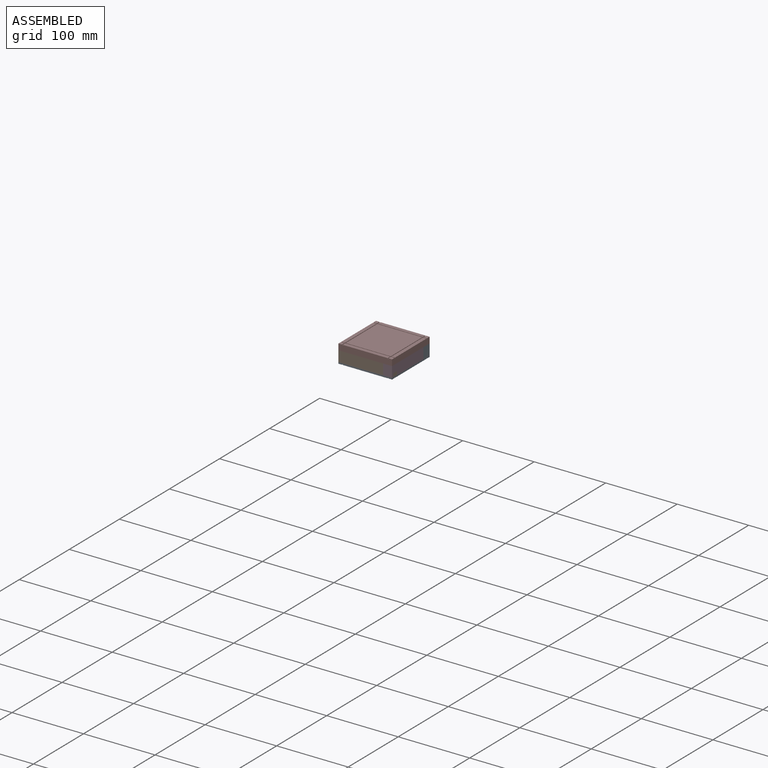
[diagram: assembled view]
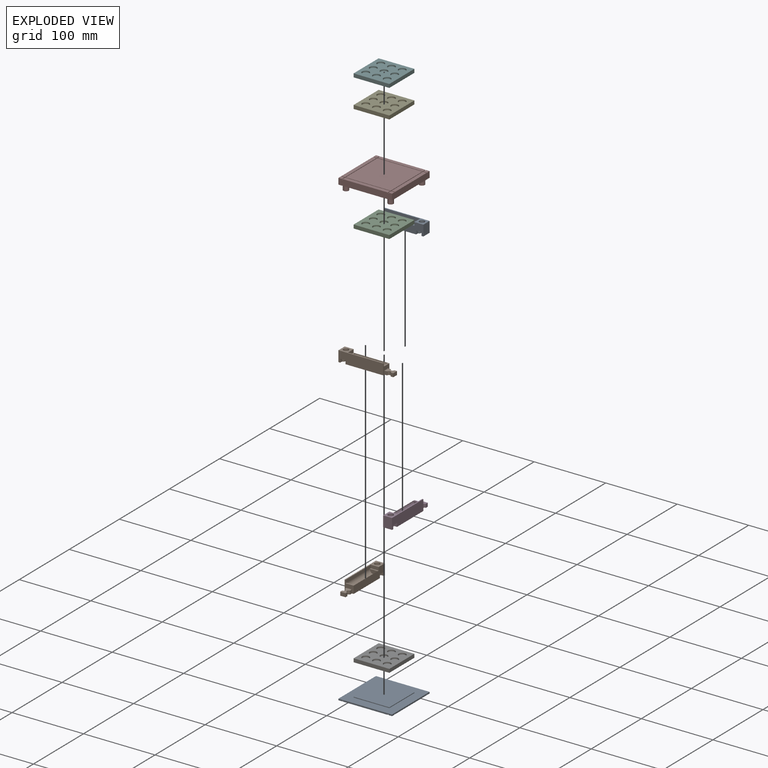
[diagram: exploded view]
GUIDED TOUR — MATED ASSEMBLY (Onshape document b35e29c99b966224db2e9e65, AutoMate assembly b35e29c99b966224db2e9e65_3995c550875dd4c600285eb4_8e761696dfd5afc8842ea449_default)

This assembly has 10 components, labeled P0..P9 below (a component is one placed occurrence of a part; the same part can appear more than once), held together by 9 mates. A mate is a constraint between two components; its type names the relative motion it leaves free:
  FASTENED — locks the two components together rigidly (no relative motion).
Axis/direction vectors are unit vectors and 'through' points are millimeter coordinates, both in the assembly's world frame.

MATES
  1. FASTENED "Fastened 2": P9 <-> P3, direction (0.000, 0.000, 1.000) through (57.94, -54.83, -3.53) mm
  2. FASTENED "Fastened 4": P0 <-> P3, direction (0.000, 0.000, 1.000) through (51.69, -48.58, -8.53) mm
  3. FASTENED "Fastened 9": P9 <-> P7, direction (0.000, 0.000, 1.000) through (-4.56, -54.83, -1.03) mm
  4. FASTENED "Fastened 5": P6 <-> P0, direction (0.000, 0.000, -1.000) through (26.69, -23.58, -7.53) mm
  5. FASTENED "Fastened 3": P9 <-> P1, direction (0.000, 0.000, -1.000) through (-4.56, -54.83, -3.53) mm
  6. FASTENED "Fastened 8": P2 <-> P6, direction (0.000, 0.000, -1.000) through (26.69, -23.58, -2.53) mm
  7. FASTENED "Fastened 7": P4 <-> P5, direction (0.000, 0.000, -1.000) through (26.69, -23.58, 7.47) mm
  8. FASTENED "Fastened 6": P4 <-> P2, direction (0.000, 0.000, -1.000) through (26.69, -23.58, 2.47) mm
  9. FASTENED "Fastened 1": P1 <-> P8, direction (0.000, 0.000, -1.000) through (-4.56, 7.67, -3.53) mm

ASSEMBLY ORDER
  1. P9 — the base component [order heuristic]
  2. P1 — core [order heuristic]
  3. P3 — core [order heuristic]
  4. P8 — core [order heuristic]
  5. P6 [order verified]
  6. P2 [order verified]
  7. P0 [order verified]
  8. P4 [order verified]
  9. P7 — core [order heuristic]
  10. P5 [order verified]
Order-tag legend:
  [order verified] — this step's position reverses a verified removal order: the component was checked to insert without passing through the ones already placed.
  [order heuristic] — the first 5 components form the assembly's core: parts whose collision-free extraction could not be verified, listed in mate-graph order.

Of the 10 components, 5 carry the full construction recipe — the FeatureScript program that regenerates the part's solid from scratch; the rest are supplied as boundary geometry only.
Each toured component is shown spotlighted twice — in the assembled view, then in the exploded view, where a leader line traces a displaced component back to its assembled socket (saturated green if recipe-attached, orange if geometry-only; every other component desaturated gray) — followed by its recipe or geometry summary and the mates that hold it.
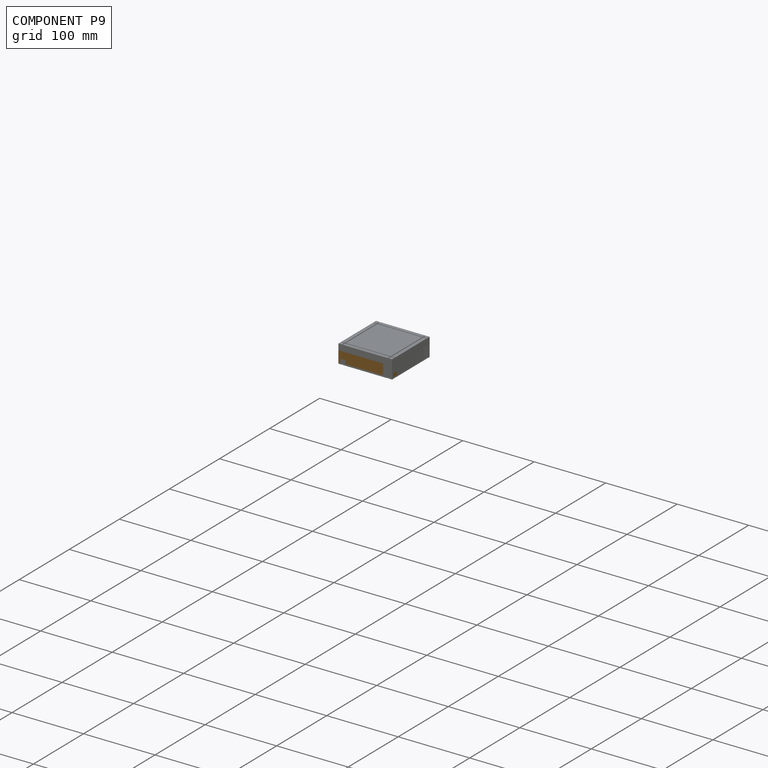
[diagram: component P9 — assembled]
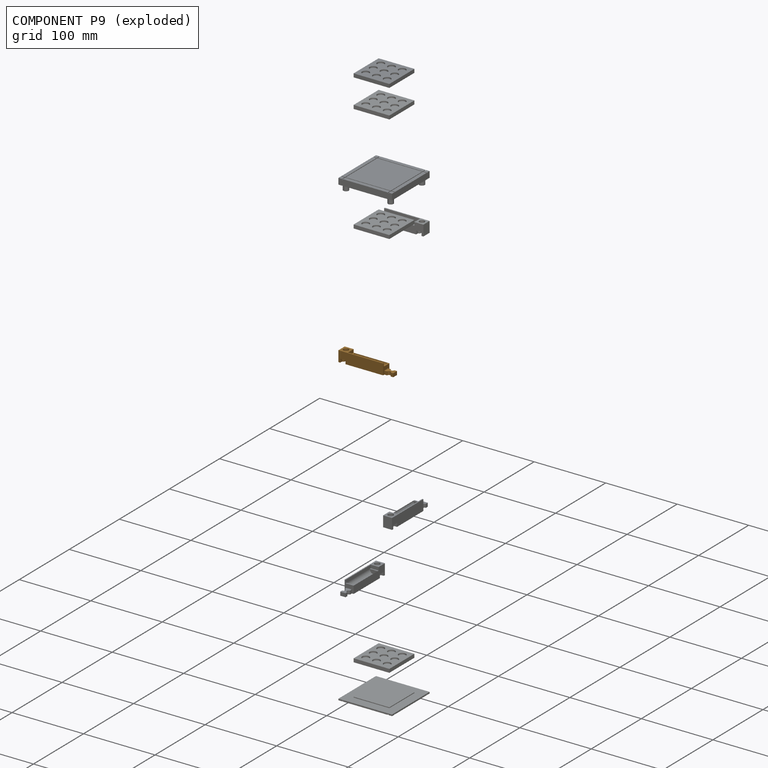
[diagram: component P9 — exploded]
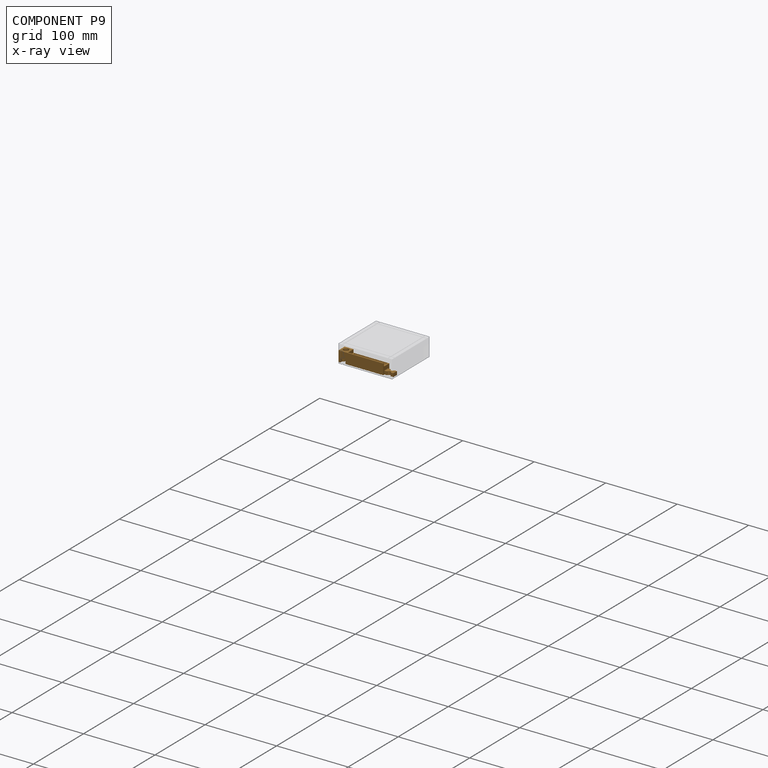
[diagram: component P9 — x-ray view]
COMPONENT P9 — geometry summary (no construction recipe available for this part):
  bounding box: 75.0 x 15.0 x 12.5 mm
  B-rep topology: 1 solid, 31 faces, 164 edges
  volume: 6727 mm^3 (48% of its bounding box)
Held by: FASTENED mate "Fastened 2" to P3; FASTENED mate "Fastened 9" to P7; FASTENED mate "Fastened 3" to P1.
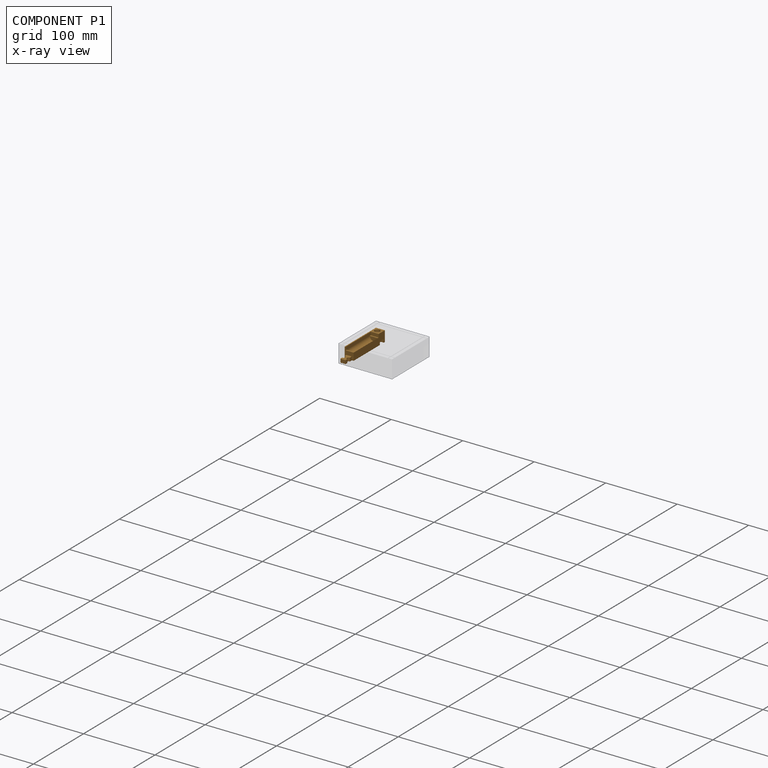
[diagram: component P1 — x-ray view]
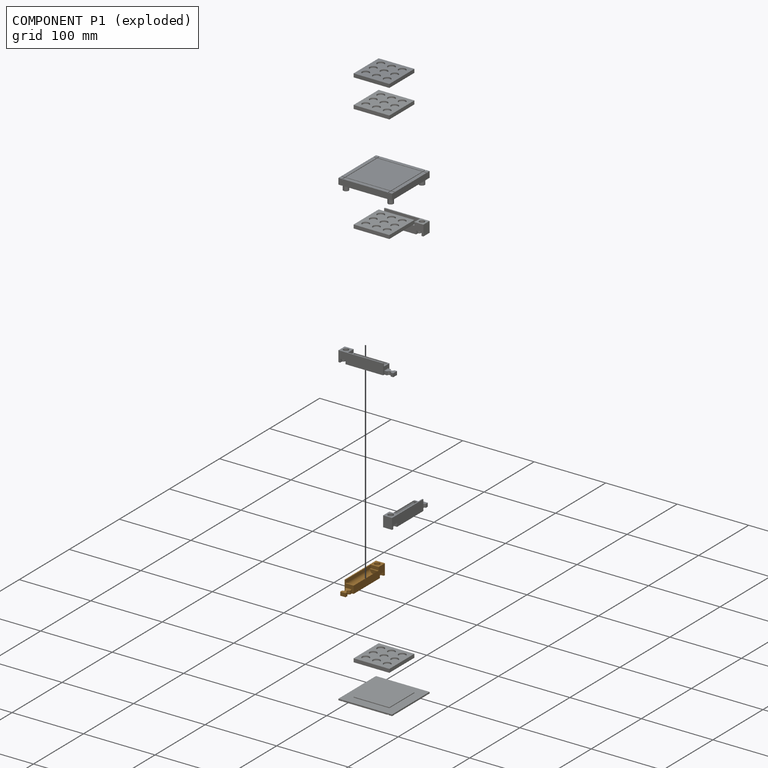
[diagram: component P1 — exploded]
COMPONENT P1 — geometry summary (no construction recipe available for this part):
  bounding box: 75.0 x 15.0 x 12.5 mm
  B-rep topology: 1 solid, 31 faces, 164 edges
  volume: 6727 mm^3 (48% of its bounding box)
Held by: FASTENED mate "Fastened 3" to P9; FASTENED mate "Fastened 1" to P8.
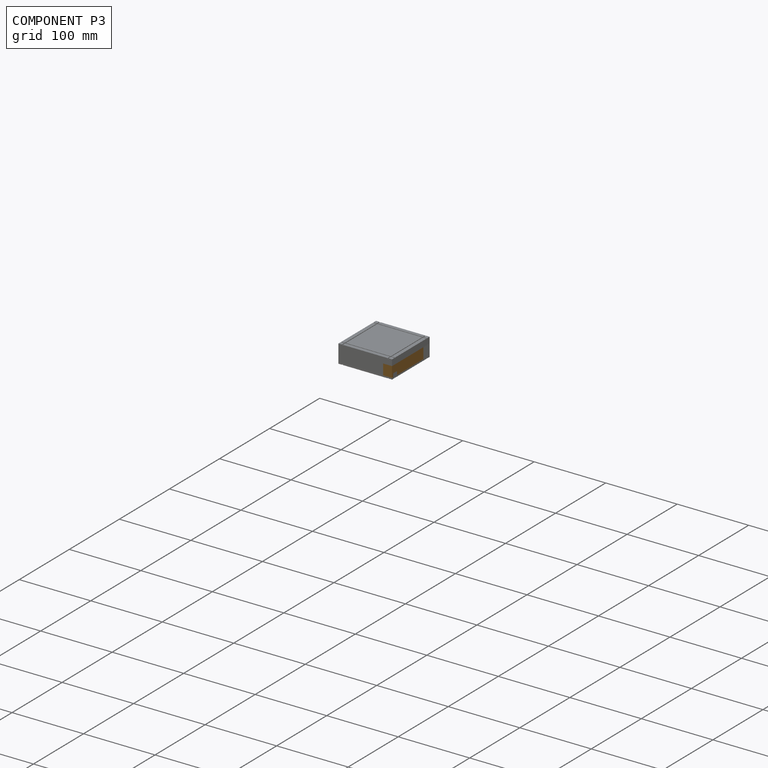
[diagram: component P3 — assembled]
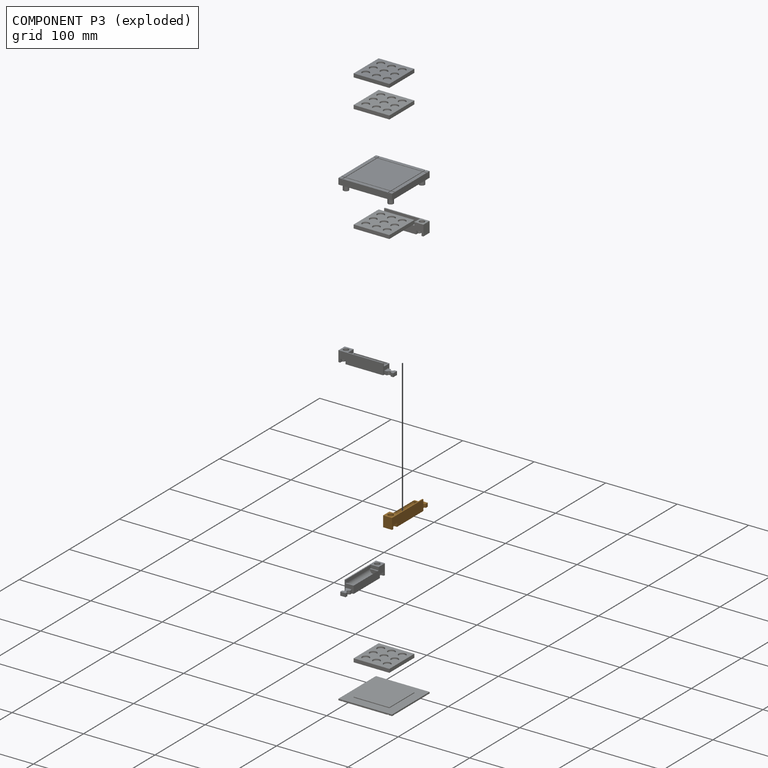
[diagram: component P3 — exploded]
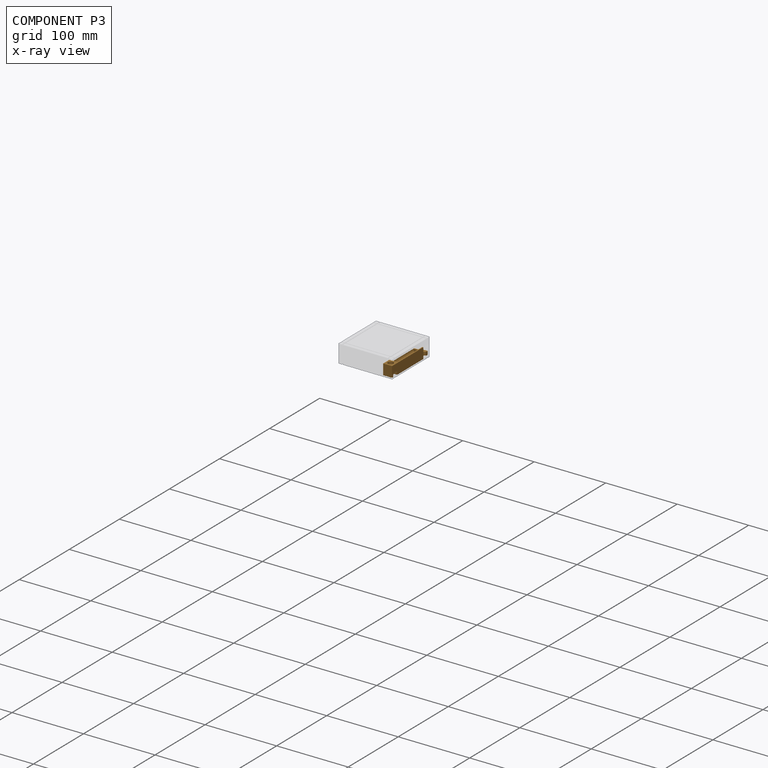
[diagram: component P3 — x-ray view]
COMPONENT P3 — geometry summary (no construction recipe available for this part):
  bounding box: 75.0 x 15.0 x 12.5 mm
  B-rep topology: 1 solid, 31 faces, 164 edges
  volume: 6727 mm^3 (48% of its bounding box)
Held by: FASTENED mate "Fastened 2" to P9; FASTENED mate "Fastened 4" to P0.
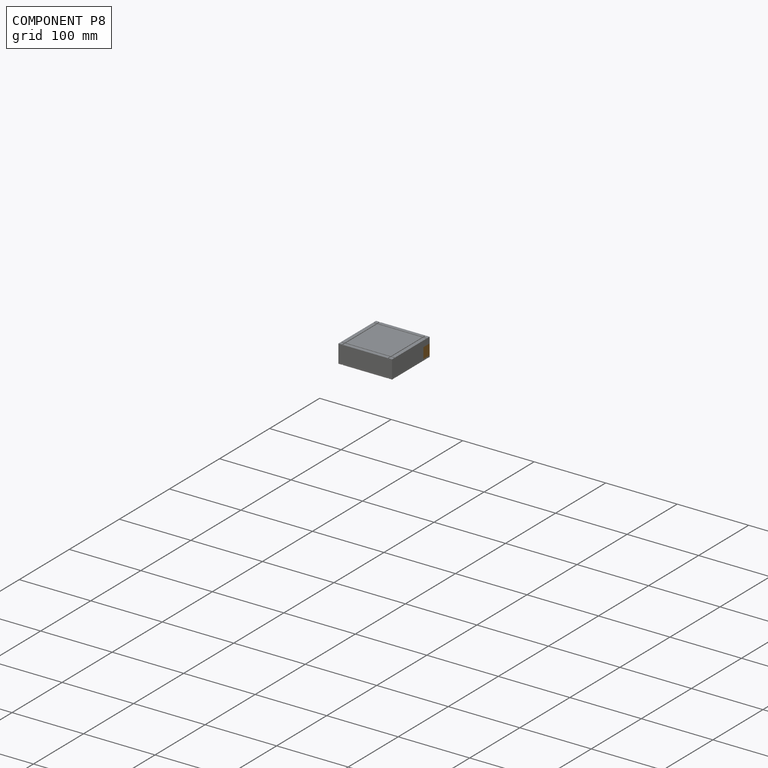
[diagram: component P8 — assembled]
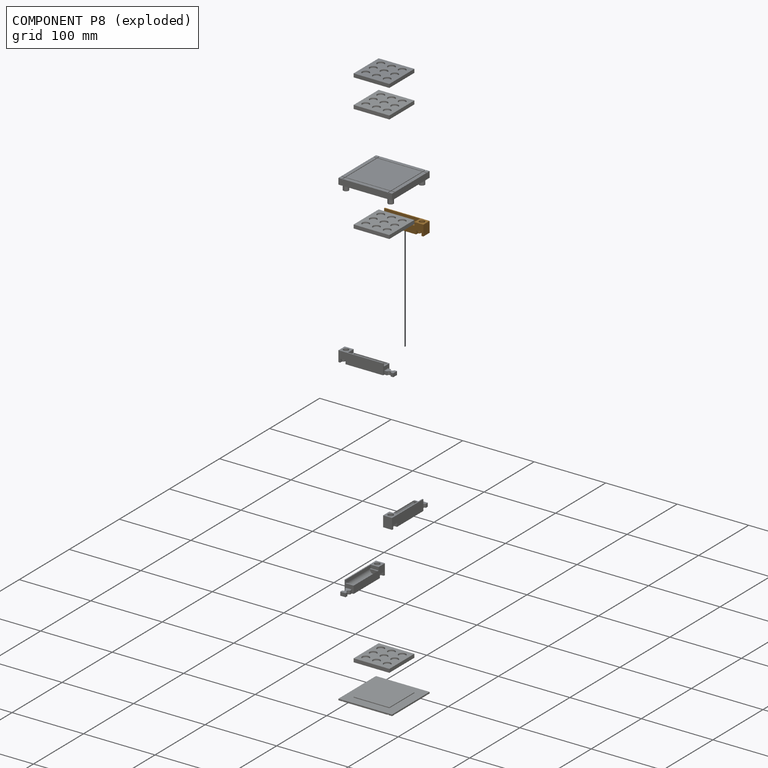
[diagram: component P8 — exploded]
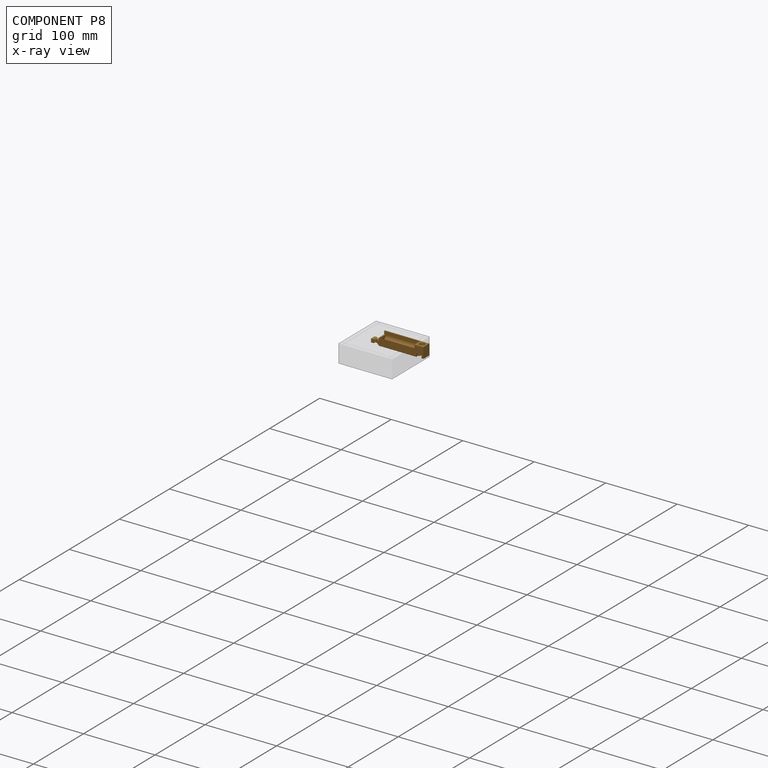
[diagram: component P8 — x-ray view]
COMPONENT P8 — geometry summary (no construction recipe available for this part):
  bounding box: 75.0 x 15.0 x 12.5 mm
  B-rep topology: 1 solid, 31 faces, 164 edges
  volume: 6727 mm^3 (48% of its bounding box)
Held by: FASTENED mate "Fastened 1" to P1.
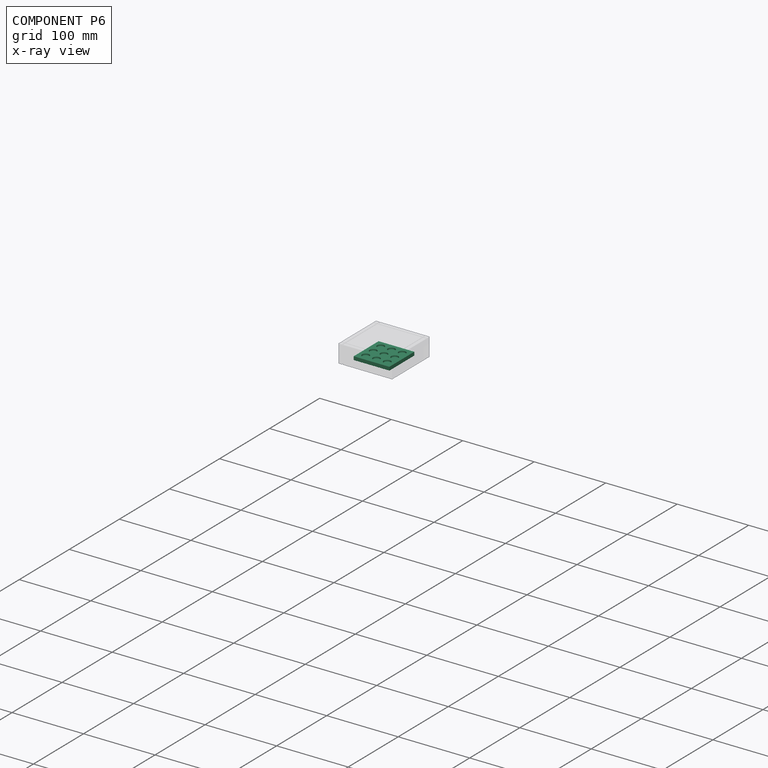
[diagram: component P6 — x-ray view]
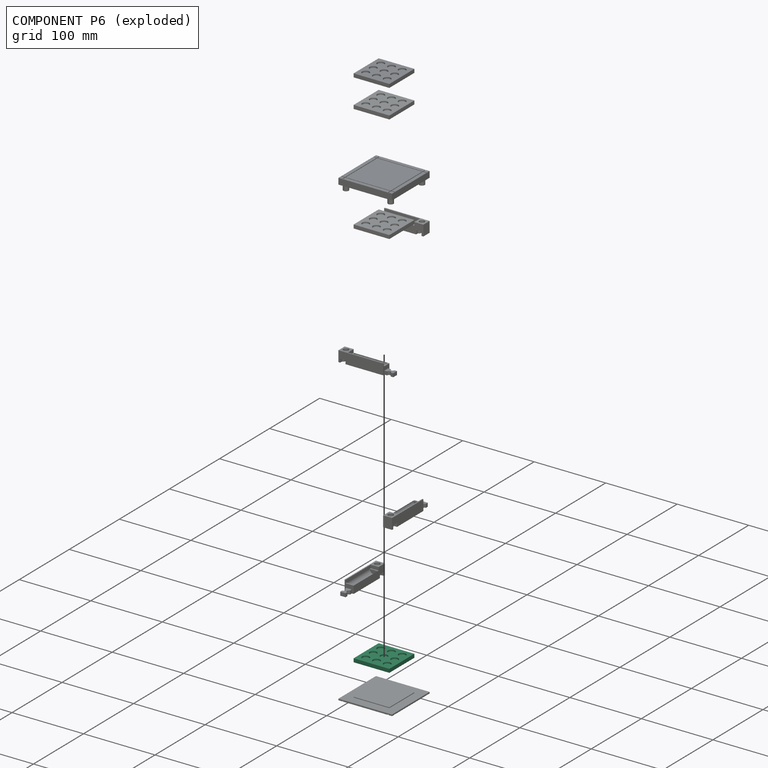
[diagram: component P6 — exploded]
COMPONENT P6 — same part as P2 (CADFS 00586416); its construction recipe is shown at P2.
Held by: FASTENED mate "Fastened 5" to P0; FASTENED mate "Fastened 8" to P2.
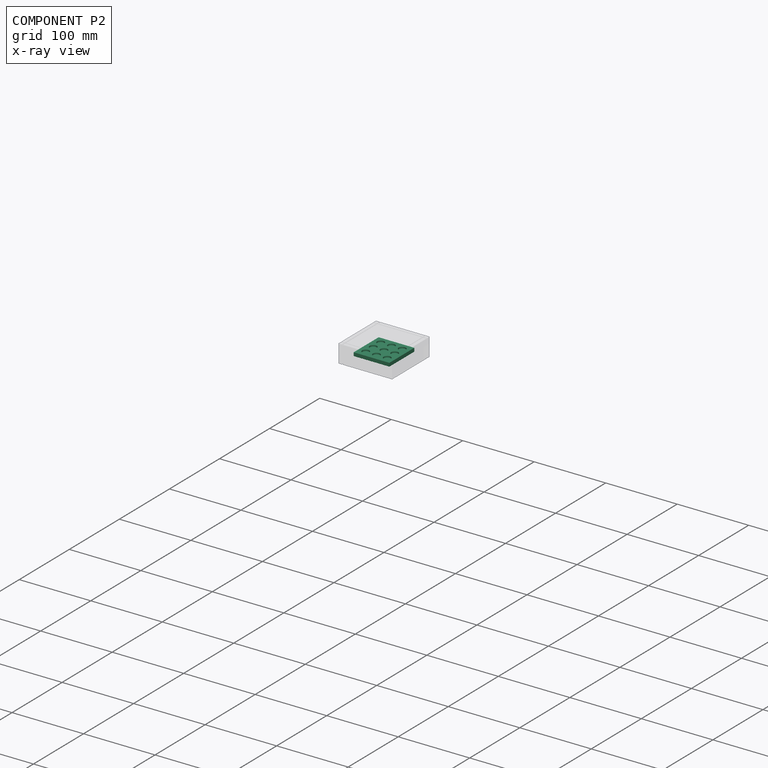
[diagram: component P2 — x-ray view]
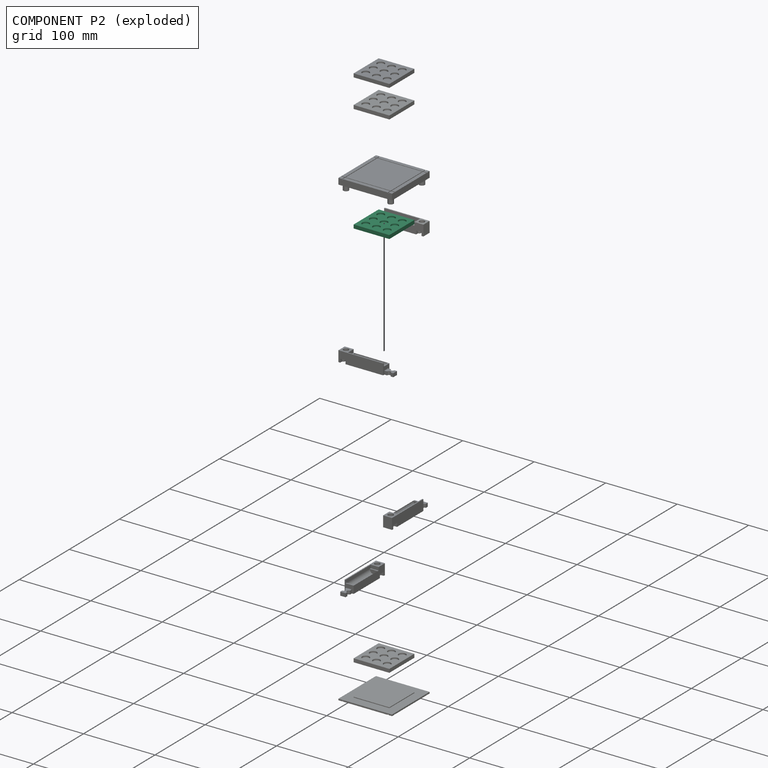
[diagram: component P2 — exploded]
COMPONENT P2 — recipe-attached (CADFS 00586416, mesh-verified: the recipe's output STEP matches this component's geometry to below the mesh-comparison resolution (tessellation chordal tolerance ~0.106 mm)).
Held by: FASTENED mate "Fastened 8" to P6; FASTENED mate "Fastened 6" to P4.
Construction recipe (FeatureScript — the CAD program that rebuilds this solid; sketch coordinates are in the units given by the * unit suffixes, e.g. mm):

FeatureScript 1511;
import(path : "onshape/std/geometry.fs", version : "1511.0");
import(path : "onshape/std/common.fs", version : "1511.0");
const mm = millimeter;
const VERTEX = EntityType.VERTEX;
const EDGE = EntityType.EDGE;
const FACE = EntityType.FACE;
const BODY = EntityType.BODY;
function v(x, y){return vector(x, y);}
function OD(order){return orderDisambiguation(order);}
function OSD(set){return originalSetDisambiguation(set);}
function TD(topology){return topologyDisambiguation(topology);}
function TDD(query){return trueDependencyDisambiguation(query);}
function sQuery(a, b, c) {return sketchEntityQuery(a, b, c);}

annotation { "Feature Type Name" : "Feature", "Feature Type Description" : "" }
export const myFeature = defineFeature(function(context is Context, id is Id, definition is map)
    precondition{}
    {
        {
            var Q0;
            Q0=qCreatedBy(makeId("Top.planeOp"),FACE);
            var sketch = newSketch(context, id + "F0", { "sketchPlane" : qUnion([Q0])});
            skLineSegment(sketch, "E0.bottom", {"start": v(25, -25) * mm, "end": v(-25, -25) * mm});
            skLineSegment(sketch, "E0.top", {"start": v(25, 25) * mm, "end": v(-25, 25) * mm});
            skLineSegment(sketch, "E0.left", {"start": v(25, -25) * mm, "end": v(25, 25) * mm});
            skLineSegment(sketch, "E0.right", {"start": v(-25, -25) * mm, "end": v(-25, 25) * mm});
            skPoint(sketch, "E0.middle", {"position": v(0, 0) * mm});
            skCircle(sketch, "E1", {"center": v(-15, 15) * mm, "radius": 5 * mm});
            skCircle(sketch, "E2", {"center": v(0, 15) * mm, "radius": 5 * mm});
            skCircle(sketch, "E3", {"center": v(15, 15) * mm, "radius": 5 * mm});
            skCircle(sketch, "E4", {"center": v(15, -15) * mm, "radius": 5 * mm});
            skCircle(sketch, "E5", {"center": v(0, -15) * mm, "radius": 5 * mm});
            skCircle(sketch, "E6", {"center": v(-15, -15) * mm, "radius": 5 * mm});
            skCircle(sketch, "E7", {"center": v(-15, 0) * mm, "radius": 5 * mm});
            skCircle(sketch, "E8", {"center": v(0, 0) * mm, "radius": 5 * mm});
            skCircle(sketch, "E9", {"center": v(15, 0) * mm, "radius": 5 * mm});
            skSolve(sketch);
        }
        {
            var Q0;
            Q0=makeQuery(id+"F0.imprint","IMPRINT",FACE,{"disambiguationData":[TD([[makeQuery(id+"F0.imprint","IMPRINT",EDGE,{"derivedFrom":sQuery(id+"F0.wireOp",EDGE,"E0.bottom")}),-1.0]])]});
            var Q1;
            Q1=makeQuery(id+"F0.imprint","IMPRINT",FACE,{"disambiguationData":[TD([[makeQuery(id+"F0.imprint","IMPRINT",EDGE,{"derivedFrom":sQuery(id+"F0.wireOp",EDGE,"E1")}),1.0]])]});
            var Q2;
            Q2=makeQuery(id+"F0.imprint","IMPRINT",FACE,{"disambiguationData":[TD([[makeQuery(id+"F0.imprint","IMPRINT",EDGE,{"derivedFrom":sQuery(id+"F0.wireOp",EDGE,"E2")}),1.0]])]});
            var Q3;
            Q3=makeQuery(id+"F0.imprint","IMPRINT",FACE,{"disambiguationData":[TD([[makeQuery(id+"F0.imprint","IMPRINT",EDGE,{"derivedFrom":sQuery(id+"F0.wireOp",EDGE,"E3")}),1.0]])]});
            var Q4;
            Q4=makeQuery(id+"F0.imprint","IMPRINT",FACE,{"disambiguationData":[TD([[makeQuery(id+"F0.imprint","IMPRINT",EDGE,{"derivedFrom":sQuery(id+"F0.wireOp",EDGE,"E9")}),1.0]])]});
            var Q5;
            Q5=makeQuery(id+"F0.imprint","IMPRINT",FACE,{"disambiguationData":[TD([[makeQuery(id+"F0.imprint","IMPRINT",EDGE,{"derivedFrom":sQuery(id+"F0.wireOp",EDGE,"E8")}),1.0]])]});
            var Q6;
            Q6=makeQuery(id+"F0.imprint","IMPRINT",FACE,{"disambiguationData":[TD([[makeQuery(id+"F0.imprint","IMPRINT",EDGE,{"derivedFrom":sQuery(id+"F0.wireOp",EDGE,"E7")}),1.0]])]});
            var Q7;
            Q7=makeQuery(id+"F0.imprint","IMPRINT",FACE,{"disambiguationData":[TD([[makeQuery(id+"F0.imprint","IMPRINT",EDGE,{"derivedFrom":sQuery(id+"F0.wireOp",EDGE,"E6")}),1.0]])]});
            var Q8;
            Q8=makeQuery(id+"F0.imprint","IMPRINT",FACE,{"disambiguationData":[TD([[makeQuery(id+"F0.imprint","IMPRINT",EDGE,{"derivedFrom":sQuery(id+"F0.wireOp",EDGE,"E5")}),1.0]])]});
            var Q9;
            Q9=makeQuery(id+"F0.imprint","IMPRINT",FACE,{"disambiguationData":[TD([[makeQuery(id+"F0.imprint","IMPRINT",EDGE,{"derivedFrom":sQuery(id+"F0.wireOp",EDGE,"E4")}),1.0]])]});
            extrude(context, id + "F1", {"entities" : qUnion([Q0, Q1, Q2, Q3, Q4, Q5, Q6, Q7, Q8, Q9]), "depth" : 3 * mm, "offsetDistance" : 25 * mm});
        }
        {
            var Q0;
            Q0 = qSketchRegion(id + "F0", true);
            extrude(context, id + "F2", {"entities" : qUnion([Q0]), "operationType" : NewBodyOperationType.ADD, "depth" : 5 * mm, "offsetDistance" : 25 * mm});
        }
    });
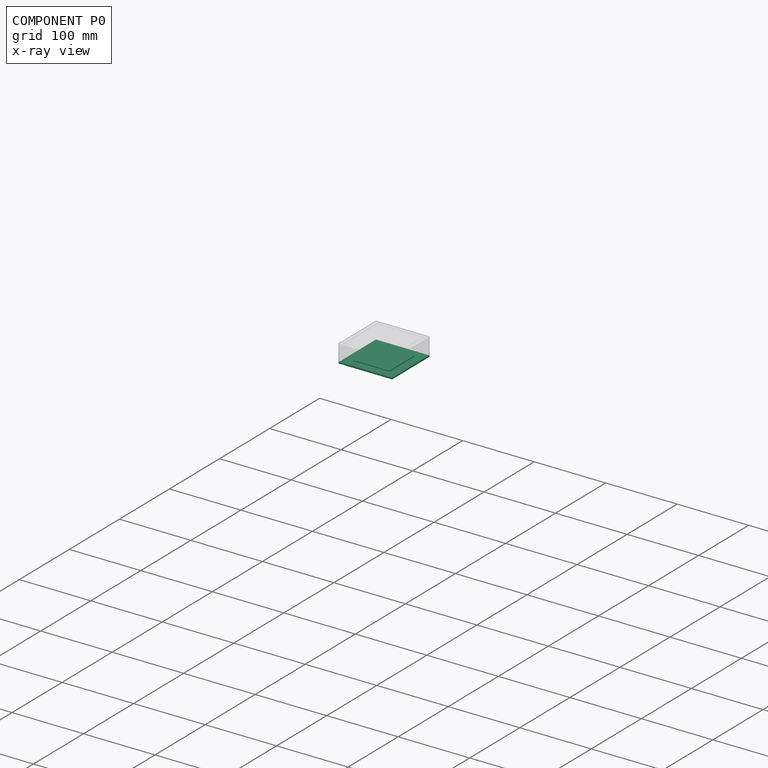
[diagram: component P0 — x-ray view]
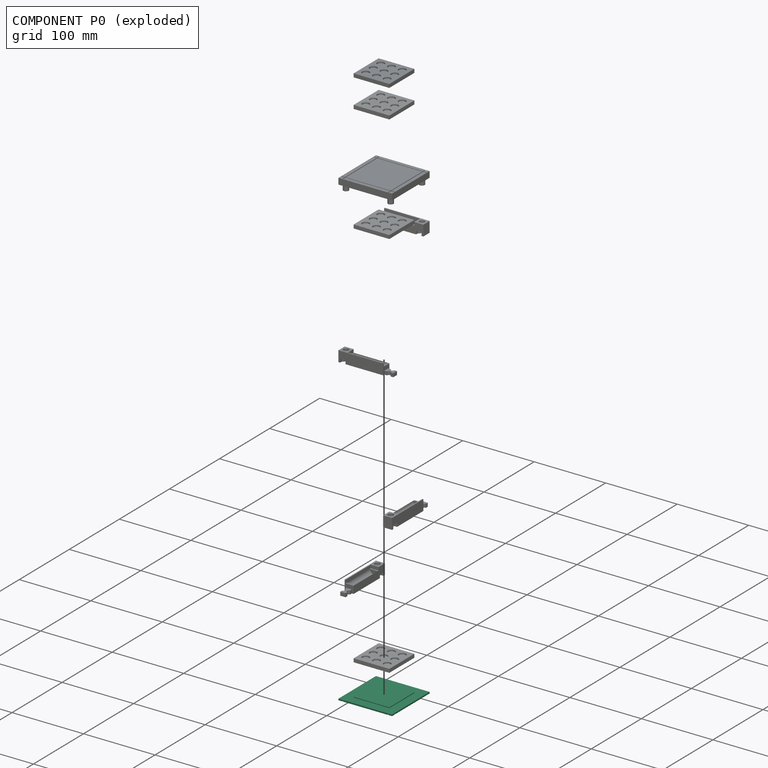
[diagram: component P0 — exploded]
COMPONENT P0 — recipe-attached (CADFS 00586420, mesh-verified: the recipe's output STEP matches this component's geometry to below the mesh-comparison resolution (tessellation chordal tolerance ~0.159 mm)).
Held by: FASTENED mate "Fastened 4" to P3; FASTENED mate "Fastened 5" to P6.
Construction recipe (FeatureScript — the CAD program that rebuilds this solid; sketch coordinates are in the units given by the * unit suffixes, e.g. mm):

FeatureScript 1511;
import(path : "onshape/std/geometry.fs", version : "1511.0");
import(path : "onshape/std/common.fs", version : "1511.0");
const mm = millimeter;
const VERTEX = EntityType.VERTEX;
const EDGE = EntityType.EDGE;
const FACE = EntityType.FACE;
const BODY = EntityType.BODY;
function v(x, y){return vector(x, y);}
function OD(order){return orderDisambiguation(order);}
function OSD(set){return originalSetDisambiguation(set);}
function TD(topology){return topologyDisambiguation(topology);}
function TDD(query){return trueDependencyDisambiguation(query);}
function sQuery(a, b, c) {return sketchEntityQuery(a, b, c);}

annotation { "Feature Type Name" : "Feature", "Feature Type Description" : "" }
export const myFeature = defineFeature(function(context is Context, id is Id, definition is map)
    precondition{}
    {
        {
            var Q0;
            Q0=qCreatedBy(makeId("Top.planeOp"),FACE);
            var sketch = newSketch(context, id + "F0", { "sketchPlane" : qUnion([Q0])});
            skLineSegment(sketch, "E0.bottom", {"start": v(-37.5, -37.5) * mm, "end": v(37.5, -37.5) * mm});
            skLineSegment(sketch, "E0.top", {"start": v(-37.5, 37.5) * mm, "end": v(37.5, 37.5) * mm});
            skLineSegment(sketch, "E0.left", {"start": v(-37.5, -37.5) * mm, "end": v(-37.5, 37.5) * mm});
            skLineSegment(sketch, "E0.right", {"start": v(37.5, -37.5) * mm, "end": v(37.5, 37.5) * mm});
            skPoint(sketch, "E0.middle", {"position": v(0, 0) * mm});
            skLineSegment(sketch, "E1.bottom", {"start": v(-25, -25) * mm, "end": v(25, -25) * mm});
            skLineSegment(sketch, "E1.top", {"start": v(-25, 25) * mm, "end": v(25, 25) * mm});
            skLineSegment(sketch, "E1.left", {"start": v(-25, -25) * mm, "end": v(-25, 25) * mm});
            skLineSegment(sketch, "E1.right", {"start": v(25, -25) * mm, "end": v(25, 25) * mm});
            skSolve(sketch);
        }
        {
            var Q0;
            Q0=makeQuery(id+"F0.imprint","IMPRINT",FACE,{"disambiguationData":[TD([[makeQuery(id+"F0.imprint","IMPRINT",EDGE,{"derivedFrom":sQuery(id+"F0.wireOp",EDGE,"E1.bottom")}),1.0]])]});
            var Q1;
            Q1=makeQuery(id+"F0.imprint","IMPRINT",FACE,{"disambiguationData":[TD([[makeQuery(id+"F0.imprint","IMPRINT",EDGE,{"derivedFrom":sQuery(id+"F0.wireOp",EDGE,"E0.bottom")}),1.0]])]});
            extrude(context, id + "F1", {"entities" : qUnion([Q0, Q1]), "depth" : 2 * mm, "offsetDistance" : 25 * mm});
        }
        {
            var Q0;
            Q0=makeQuery(id+"F0.imprint","IMPRINT",FACE,{"disambiguationData":[TD([[makeQuery(id+"F0.imprint","IMPRINT",EDGE,{"derivedFrom":sQuery(id+"F0.wireOp",EDGE,"E1.bottom")}),1.0]])]});
            extrude(context, id + "F2", {"entities" : qUnion([Q0]), "operationType" : NewBodyOperationType.ADD, "depth" : 3 * mm, "offsetDistance" : 25 * mm});
        }
        {
            var Q0;
            Q0=makeQuery(id+"F0.imprint","IMPRINT",FACE,{"disambiguationData":[TD([[makeQuery(id+"F0.imprint","IMPRINT",EDGE,{"derivedFrom":sQuery(id+"F0.wireOp",EDGE,"E0.bottom")}),1.0]])]});
            var sketch = newSketch(context, id + "F3", { "sketchPlane" : qUnion([Q0])});
            skLineSegment(sketch, "E2.bottom", {"start": v(-32.5, -37.5) * mm, "end": v(-31.5, -37.5) * mm});
            skLineSegment(sketch, "E2.top", {"start": v(-32.5, 37.5) * mm, "end": v(-31.5, 37.5) * mm});
            skLineSegment(sketch, "E2.left", {"start": v(-32.5, -37.5) * mm, "end": v(-32.5, 37.5) * mm});
            skLineSegment(sketch, "E2.right", {"start": v(-31.5, -37.5) * mm, "end": v(-31.5, 37.5) * mm});
            skLineSegment(sketch, "E3.bottom", {"start": v(-37.5, -32.5) * mm, "end": v(37.5, -32.5) * mm});
            skLineSegment(sketch, "E3.top", {"start": v(-37.5, -31.5) * mm, "end": v(37.5, -31.5) * mm});
            skLineSegment(sketch, "E3.left", {"start": v(-37.5, -32.5) * mm, "end": v(-37.5, -31.5) * mm});
            skLineSegment(sketch, "E3.right", {"start": v(37.5, -32.5) * mm, "end": v(37.5, -31.5) * mm});
            skLineSegment(sketch, "E4.bottom", {"start": v(32.5, -37.5) * mm, "end": v(31.5, -37.5) * mm});
            skLineSegment(sketch, "E4.top", {"start": v(32.5, 37.5) * mm, "end": v(31.5, 37.5) * mm});
            skLineSegment(sketch, "E4.left", {"start": v(32.5, -37.5) * mm, "end": v(32.5, 37.5) * mm});
            skLineSegment(sketch, "E4.right", {"start": v(31.5, -37.5) * mm, "end": v(31.5, 37.5) * mm});
            skLineSegment(sketch, "E5.bottom", {"start": v(-37.5, 31.5) * mm, "end": v(37.5, 31.5) * mm});
            skLineSegment(sketch, "E5.top", {"start": v(-37.5, 32.5) * mm, "end": v(37.5, 32.5) * mm});
            skLineSegment(sketch, "E5.left", {"start": v(-37.5, 31.5) * mm, "end": v(-37.5, 32.5) * mm});
            skLineSegment(sketch, "E5.right", {"start": v(37.5, 31.5) * mm, "end": v(37.5, 32.5) * mm});
            skSolve(sketch);
        }
        {
            var Q0;
            Q0 = qSketchRegion(id + "F3", true);
            extrude(context, id + "F4", {"entities" : qUnion([Q0]), "operationType" : NewBodyOperationType.REMOVE, "depth" : 1 * mm, "offsetDistance" : 25 * mm});
        }
    });
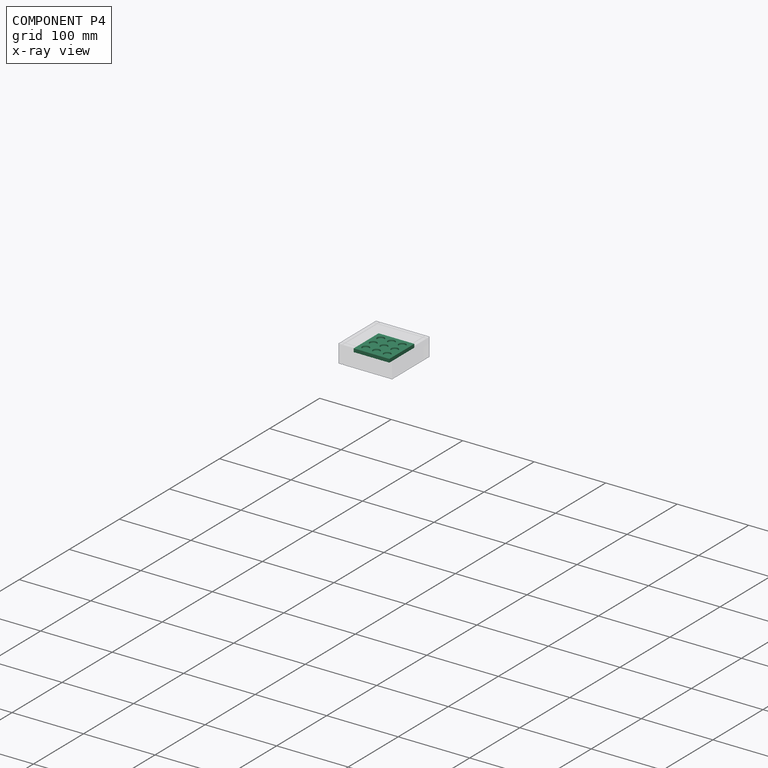
[diagram: component P4 — x-ray view]
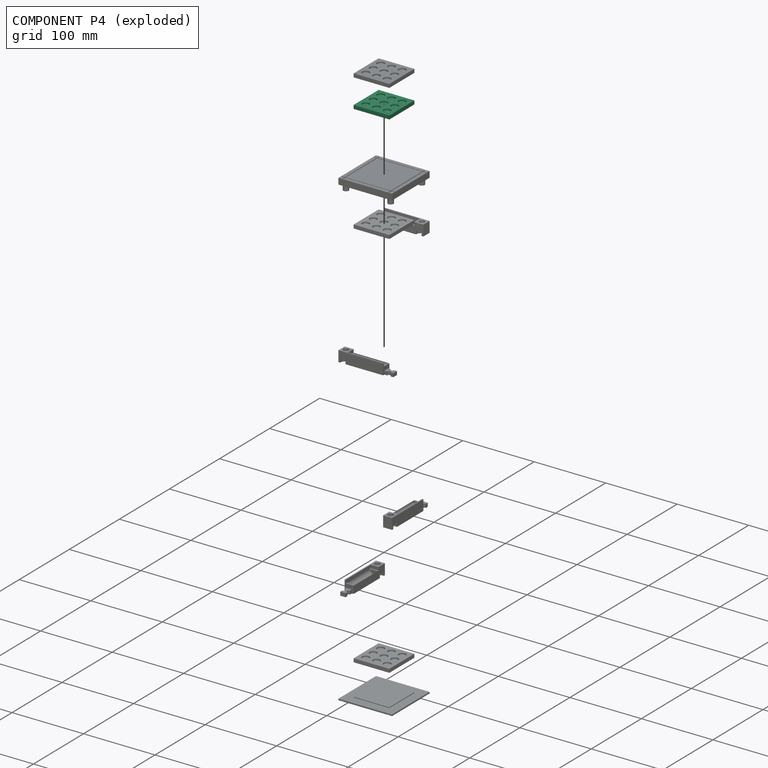
[diagram: component P4 — exploded]
COMPONENT P4 — same part as P2 (CADFS 00586416); its construction recipe is shown at P2.
Held by: FASTENED mate "Fastened 7" to P5; FASTENED mate "Fastened 6" to P2.
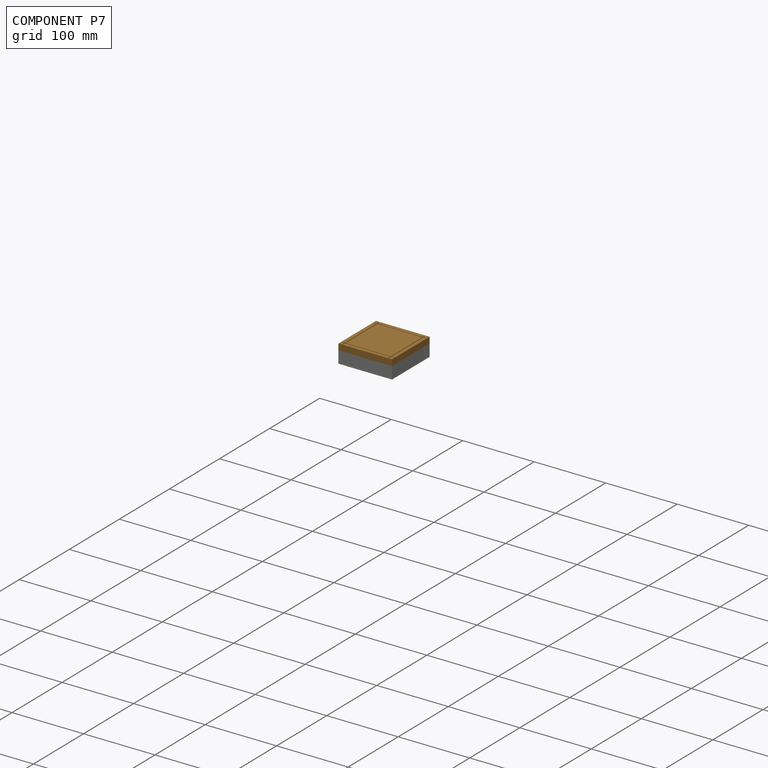
[diagram: component P7 — assembled]
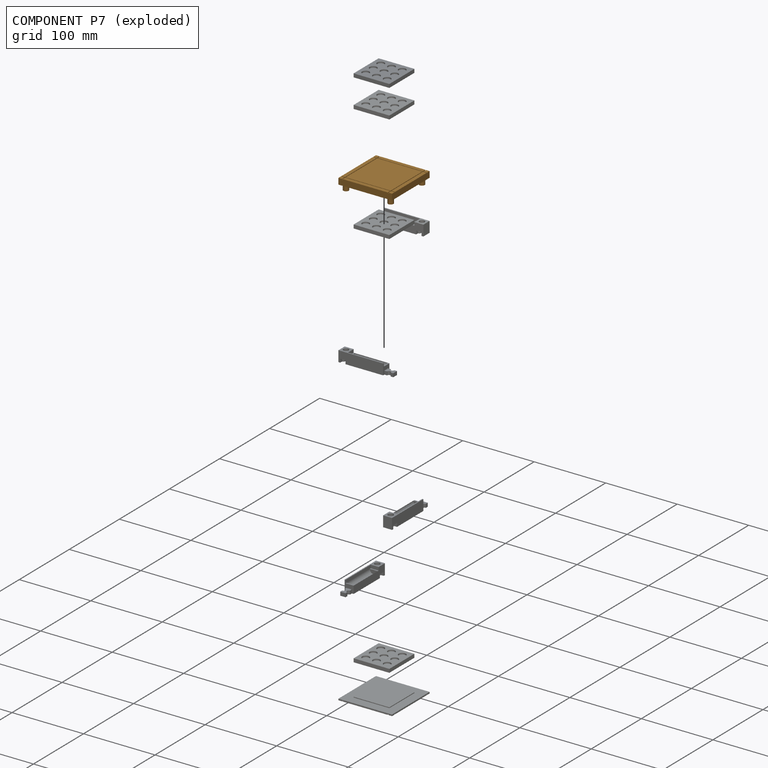
[diagram: component P7 — exploded]
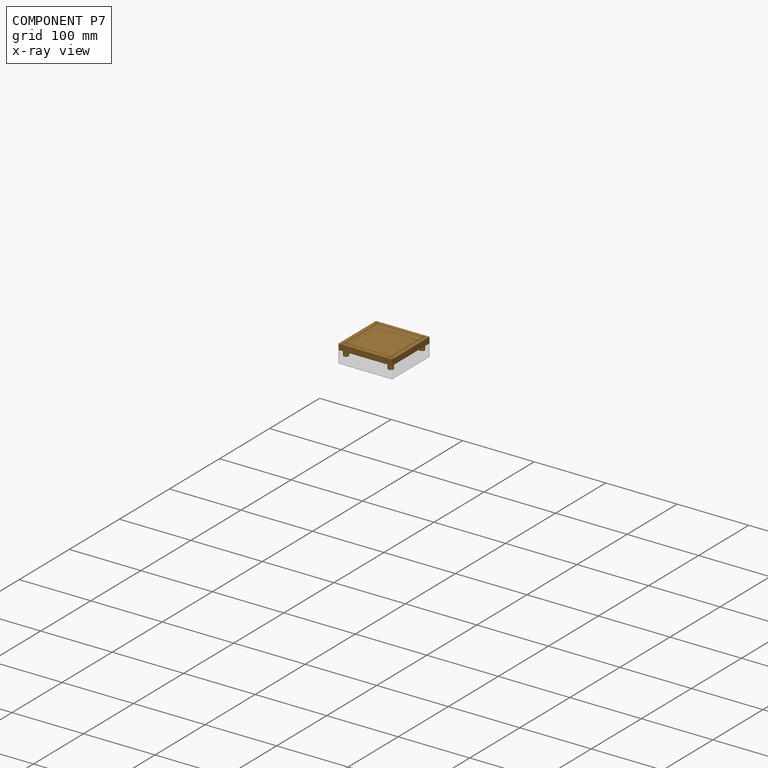
[diagram: component P7 — x-ray view]
COMPONENT P7 — geometry summary (no construction recipe available for this part):
  bounding box: 75.0 x 75.0 x 16.0 mm
  B-rep topology: 1 solid, 52 faces, 272 edges
  volume: 32592 mm^3 (36% of its bounding box)
  symmetry: 4-fold rotationally symmetric about the z axis; mirror-symmetric across its x mid-plane, y mid-plane
Held by: FASTENED mate "Fastened 9" to P9.
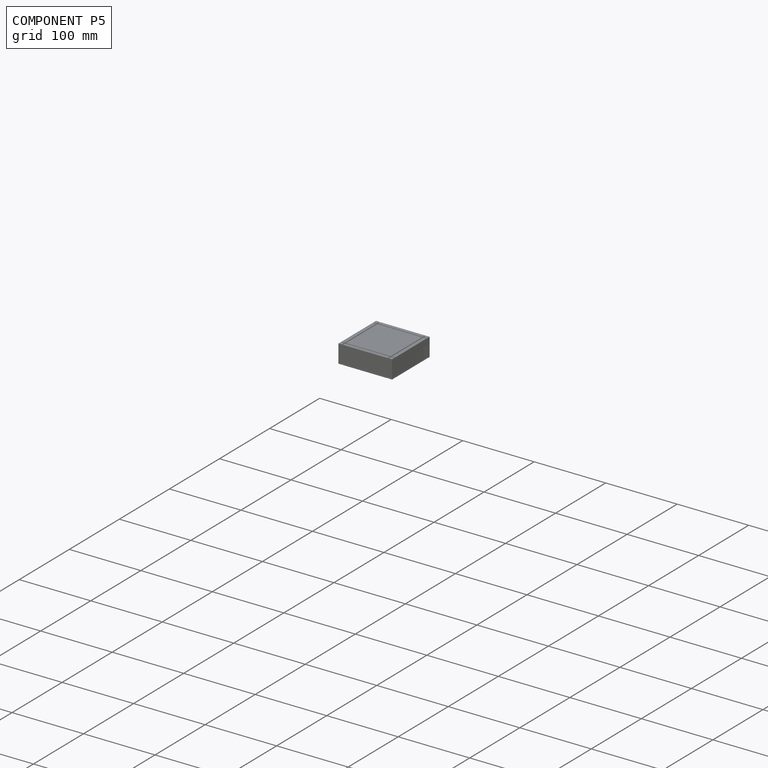
[diagram: component P5 — assembled]
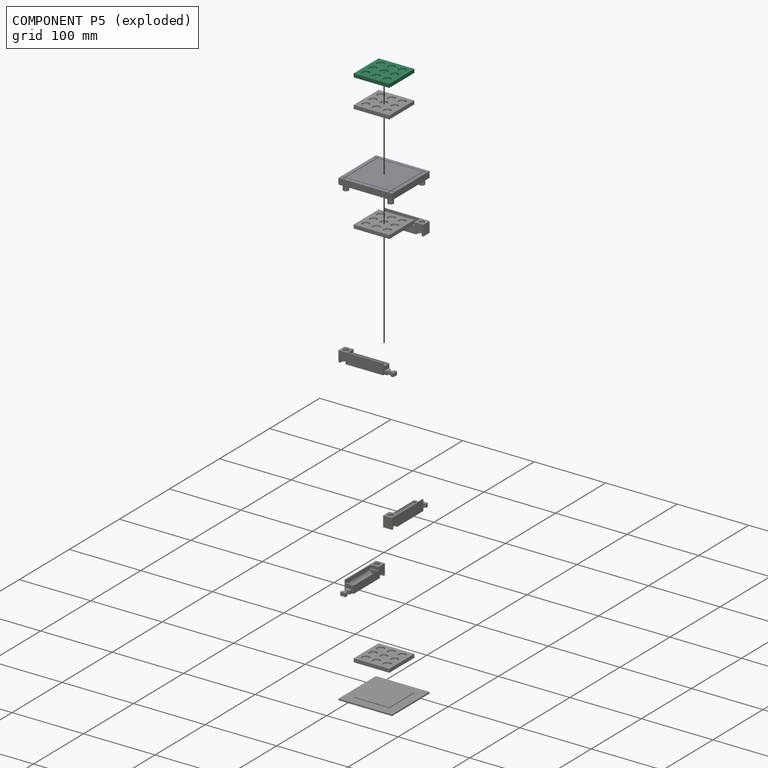
[diagram: component P5 — exploded]
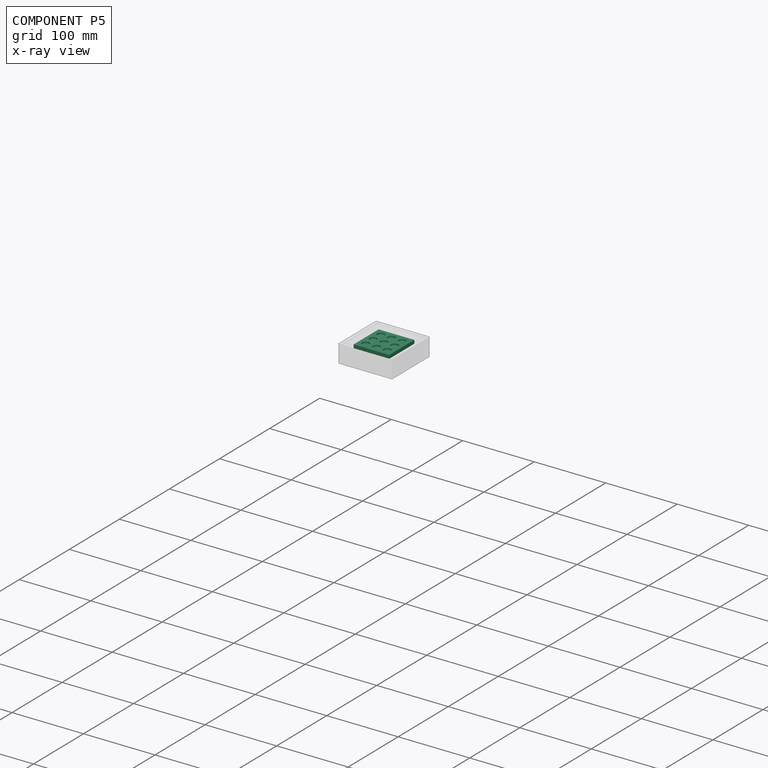
[diagram: component P5 — x-ray view]
COMPONENT P5 — same part as P2 (CADFS 00586416); its construction recipe is shown at P2.
Held by: FASTENED mate "Fastened 7" to P4.
PROVENANCE & LICENSES
Assembly (occurrences, transforms, mates, per-part STEP geometry): AutoMate dataset, Zenodo record 7776208, CC0.
Construction recipes: CADFS (HuggingFace VladPyatov/CADFS, CC-BY-4.0, layered over the ABC dataset), FeatureScript reconstruction programs keyed by ABC model id.
Join: ABC meta listings map ABC model id -> Onshape documentId; within a shared document, parts are matched by geometric signature (bounding-box dims + volume at 0.1% relative tolerance, exact B-rep face/solid counts).
Verification: 5 of this assembly's 10 components carry a recipe attachment, and every attachment is mesh-verified: the CADFS STEP and the AutoMate member STEP were compared as meshes in their shared local frame (symmetric sampled-point-to-mesh distance); worst across the 5 attachments: below the mesh-comparison resolution (tessellation chordal tolerance ~0.159 mm) on a 106 mm part.
Renders: orthographic iso camera (az 35 / el 25); the floor grid conveys scale (grid pitch printed in each image; no ruler). In the exploded view each component is displaced by its stored offset vector: the offsets alone carry the explosion direction (mate normal/axis signs are not orientation cues and do not encode it), and separation distances are assigned per mate-chain, not proportionally to assembly-order depth.
